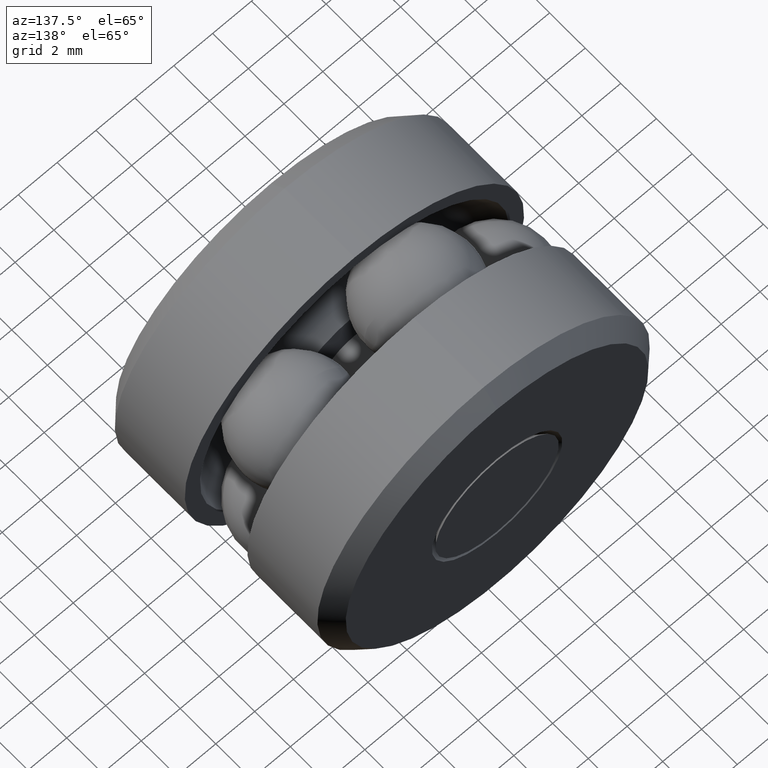
[diagram: clean part render]
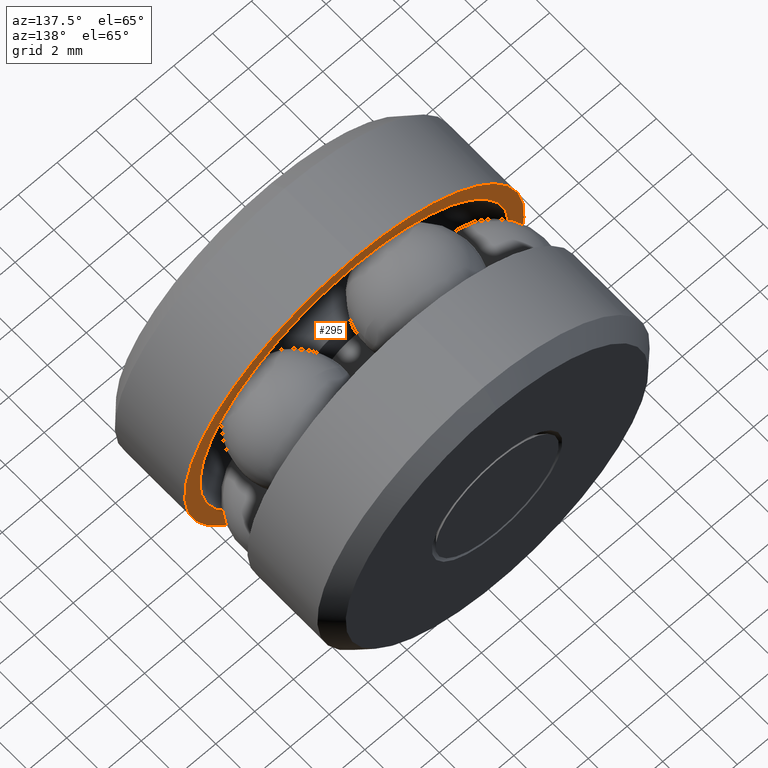
[diagram: same view with one face highlighted and labeled with its STEP entity id]
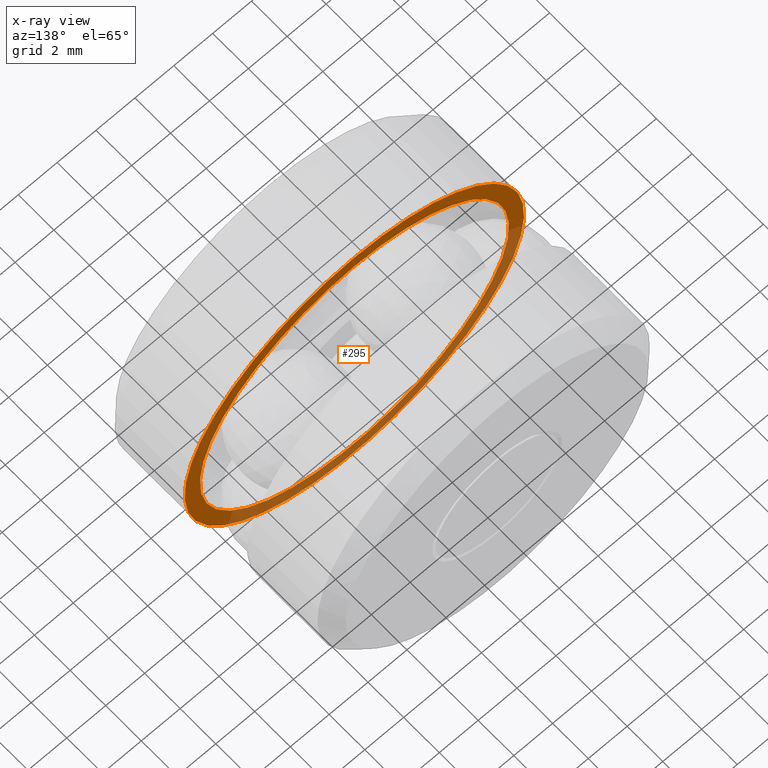
[diagram: x-ray of the same camera — body ghosted, the highlighted face saturated]
A machine part, auxiliary view. The second image highlights one B-rep face of the part: STEP entity #295.
The next image is the same camera in x-ray: the body ghosted, the highlighted face saturated — about 38% of this face is hidden behind the body in this view.
In plain terms, the highlighted planar face has unit normal (-0, 1, 0).
Its self-contained STEP definition (entity closure, byte-faithful):
#55 = CIRCLE ( 'NONE', #335, 0.3129500000000000100 ) ;
#83 = EDGE_LOOP ( 'NONE', ( #251 ) ) ;
#89 = DIRECTION ( 'NONE',  ( -0.0000000000000000000, 1.000000000000000000, 0.0000000000000000000 ) ) ;
#129 = AXIS2_PLACEMENT_3D ( 'NONE', #142, #140, #134 ) ;
#133 = DIRECTION ( 'NONE',  ( -0.0000000000000000000, 1.000000000000000000, -0.0000000000000000000 ) ) ;
#134 = DIRECTION ( 'NONE',  ( 0.0000000000000000000, 0.0000000000000000000, 1.000000000000000000 ) ) ;
#140 = DIRECTION ( 'NONE',  ( -0.0000000000000000000, 1.000000000000000000, -0.0000000000000000000 ) ) ;
#142 = CARTESIAN_POINT ( 'NONE',  ( 0.0000000000000000000, 0.1845999999999999600, 0.0000000000000000000 ) ) ;
#145 = EDGE_CURVE ( 'NONE', #337, #337, #328, .T. ) ;
#162 = FACE_OUTER_BOUND ( 'NONE', #83, .T. ) ;
#172 = ORIENTED_EDGE ( 'NONE', *, *, #224, .F. ) ;
#182 = AXIS2_PLACEMENT_3D ( 'NONE', #367, #89, #359 ) ;
#197 = EDGE_LOOP ( 'NONE', ( #172 ) ) ;
#224 = EDGE_CURVE ( 'NONE', #233, #233, #55, .T. ) ;
#233 = VERTEX_POINT ( 'NONE', #464 ) ;
#251 = ORIENTED_EDGE ( 'NONE', *, *, #145, .T. ) ;
#295 = ADVANCED_FACE ( 'NONE', ( #162, #457 ), #406, .T. ) ;
#315 = DIRECTION ( 'NONE',  ( 0.0000000000000000000, 0.0000000000000000000, 1.000000000000000000 ) ) ;
#328 = CIRCLE ( 'NONE', #129, 0.3437500000000000000 ) ;
#335 = AXIS2_PLACEMENT_3D ( 'NONE', #385, #133, #315 ) ;
#337 = VERTEX_POINT ( 'NONE', #401 ) ;
#359 = DIRECTION ( 'NONE',  ( 0.0000000000000000000, 0.0000000000000000000, 1.000000000000000000 ) ) ;
#367 = CARTESIAN_POINT ( 'NONE',  ( -0.3437500000000000000, 0.1845999999999999300, 0.0000000000000000000 ) ) ;
#385 = CARTESIAN_POINT ( 'NONE',  ( 0.0000000000000000000, 0.1845999999999999300, 0.0000000000000000000 ) ) ;
#401 = CARTESIAN_POINT ( 'NONE',  ( 0.0000000000000000000, 0.1845999999999999600, 0.3437500000000000000 ) ) ;
#406 = PLANE ( 'NONE',  #182 ) ;
#457 = FACE_BOUND ( 'NONE', #197, .T. ) ;
#464 = CARTESIAN_POINT ( 'NONE',  ( 0.0000000000000000000, 0.1845999999999999300, 0.3129500000000000100 ) ) ;